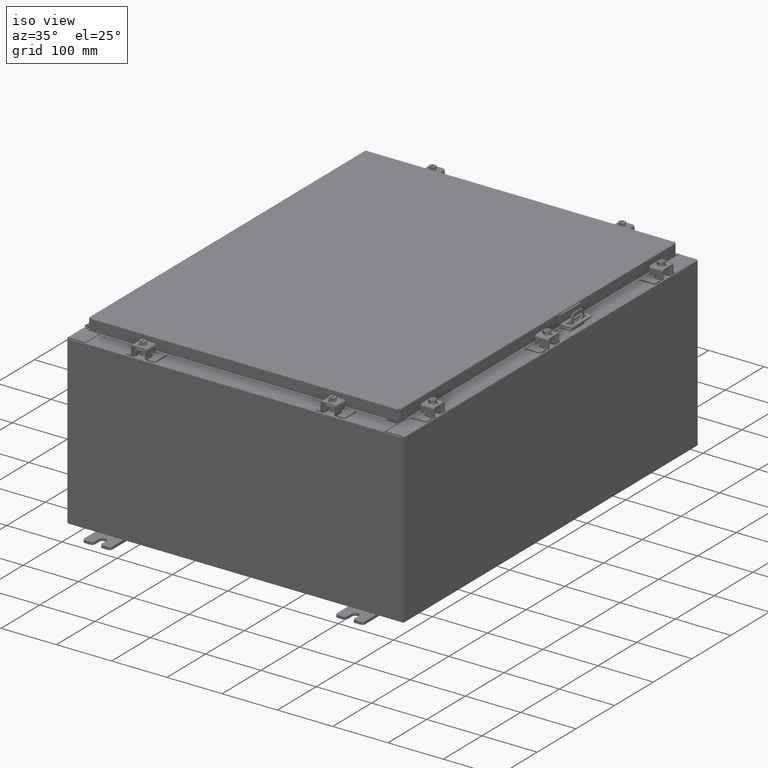
[diagram: clean part render]
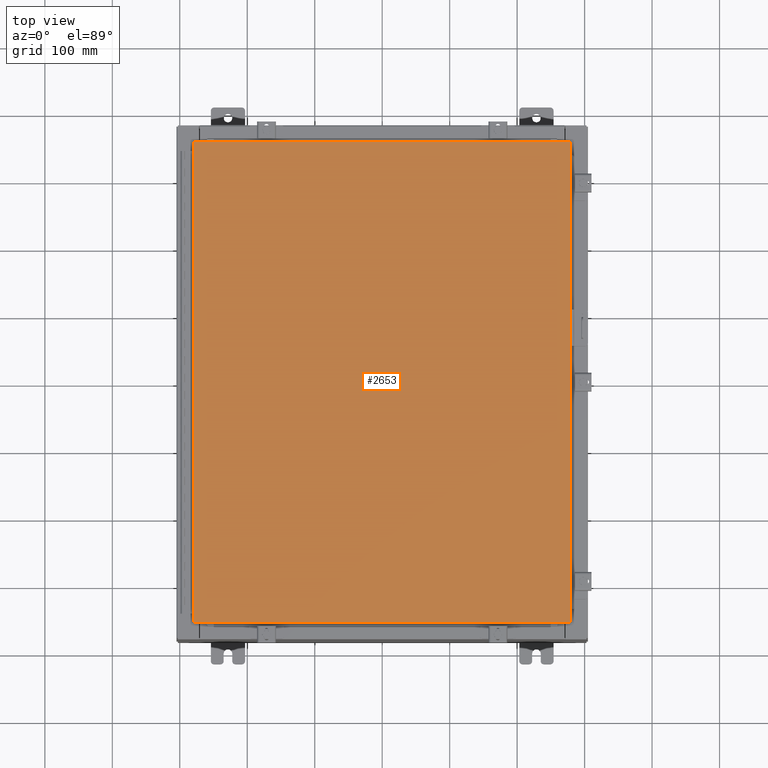
[diagram: tour spotlight — one face highlighted and labeled with its STEP entity id]
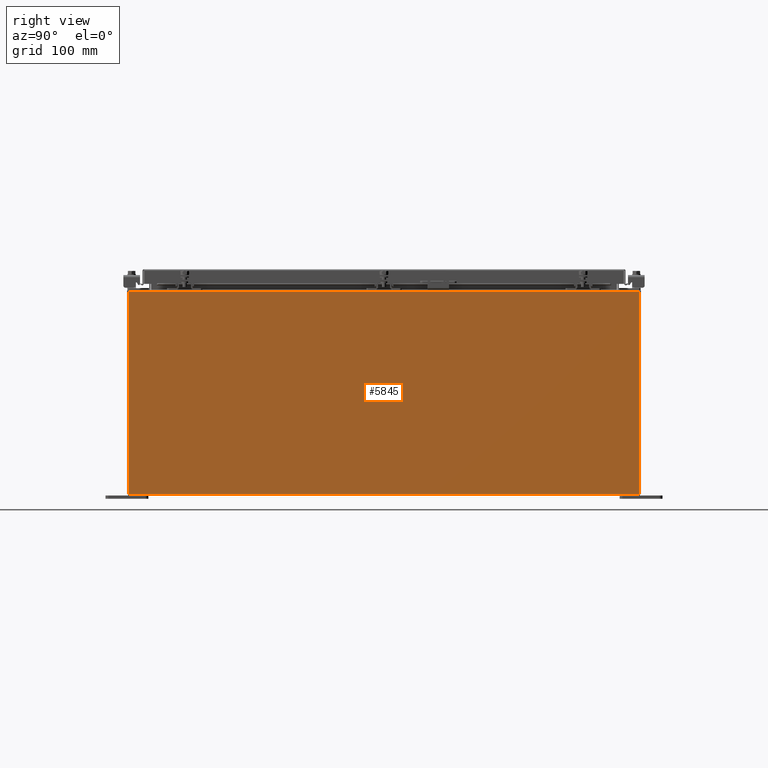
[diagram: tour spotlight — one face highlighted and labeled with its STEP entity id]
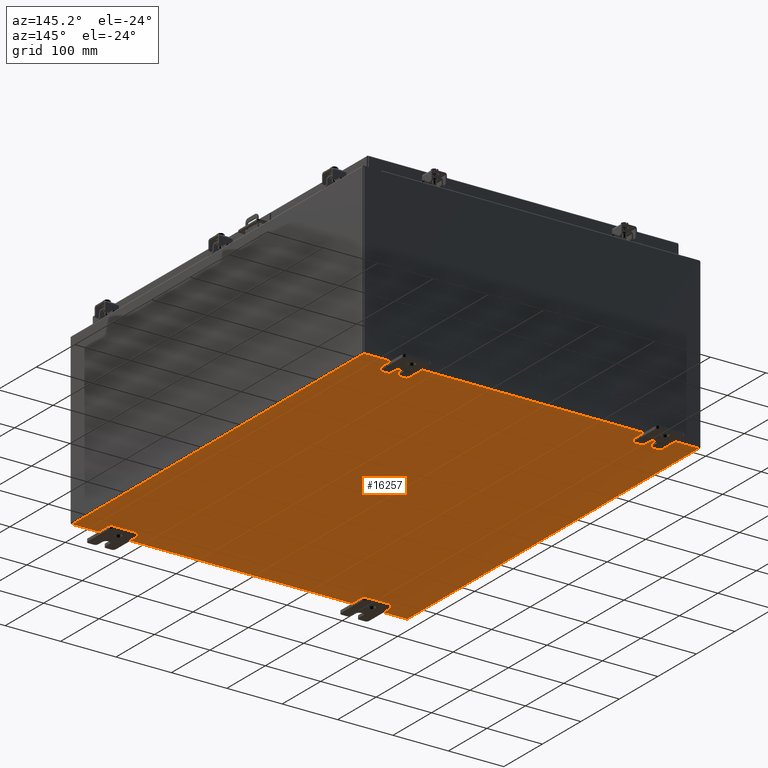
[diagram: tour spotlight — one face highlighted and labeled with its STEP entity id]
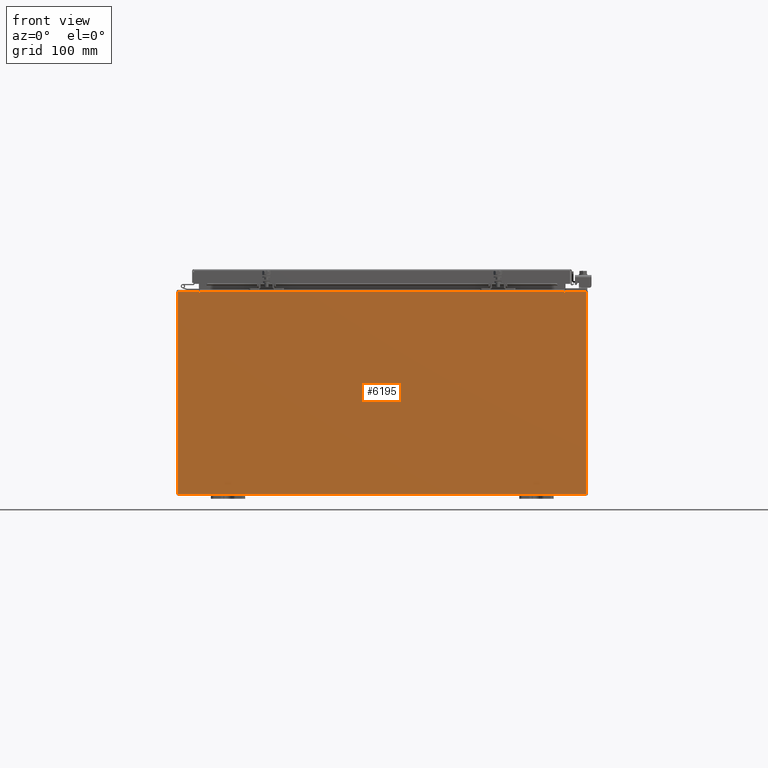
[diagram: tour spotlight — one face highlighted and labeled with its STEP entity id]
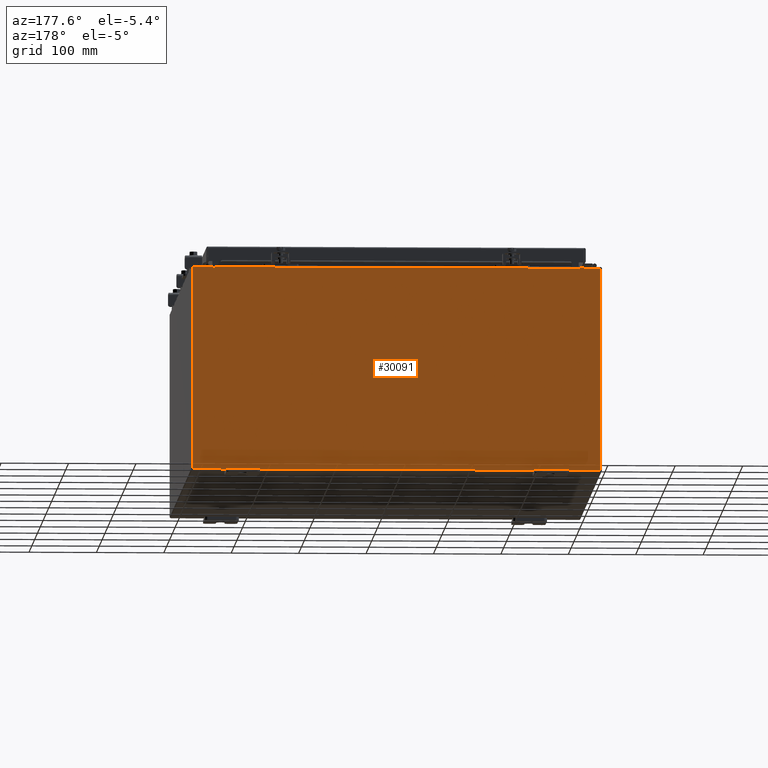
[diagram: tour spotlight — one face highlighted and labeled with its STEP entity id]
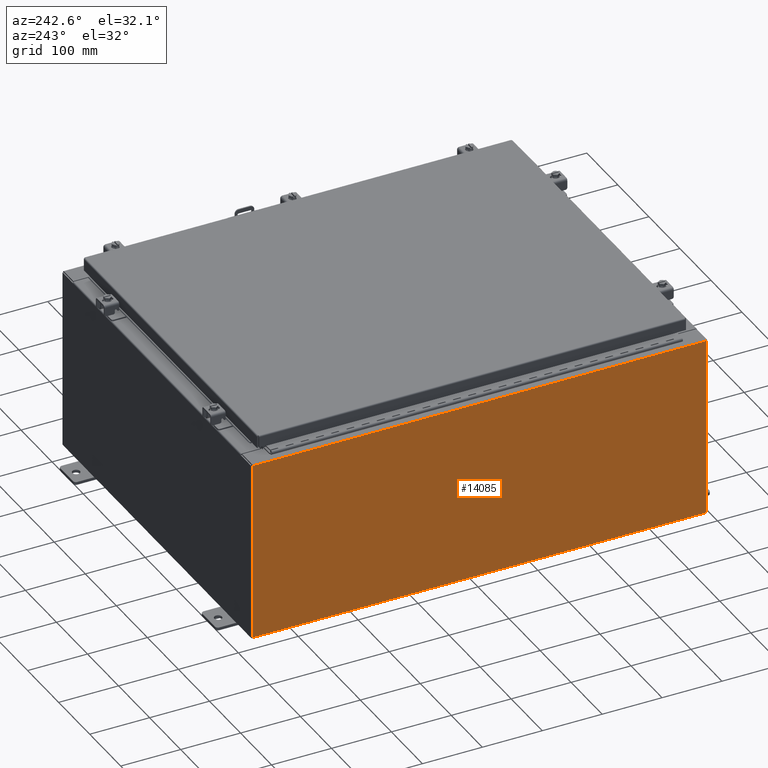
[diagram: tour spotlight — one face highlighted and labeled with its STEP entity id]
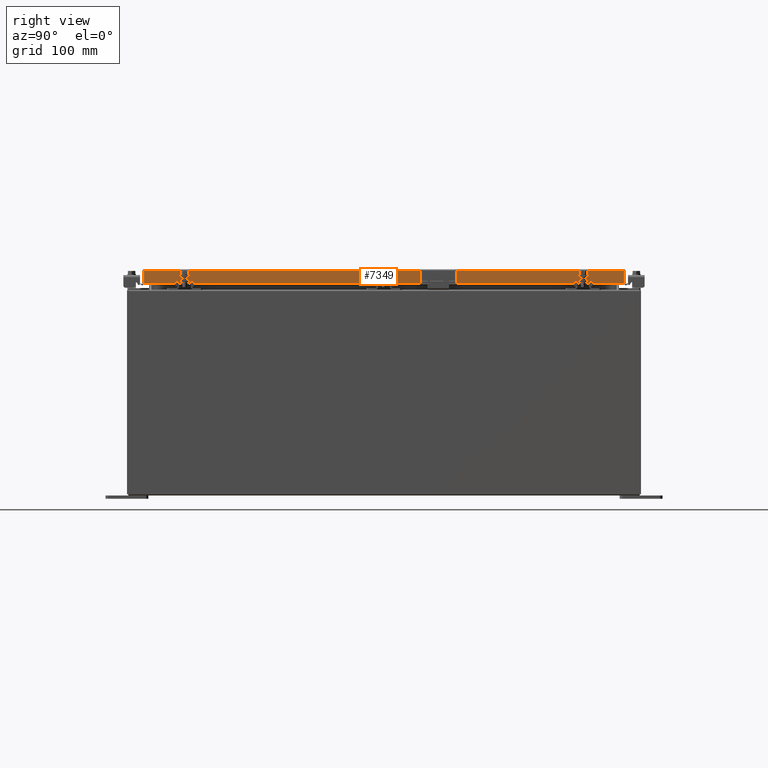
[diagram: tour spotlight — one face highlighted and labeled with its STEP entity id]
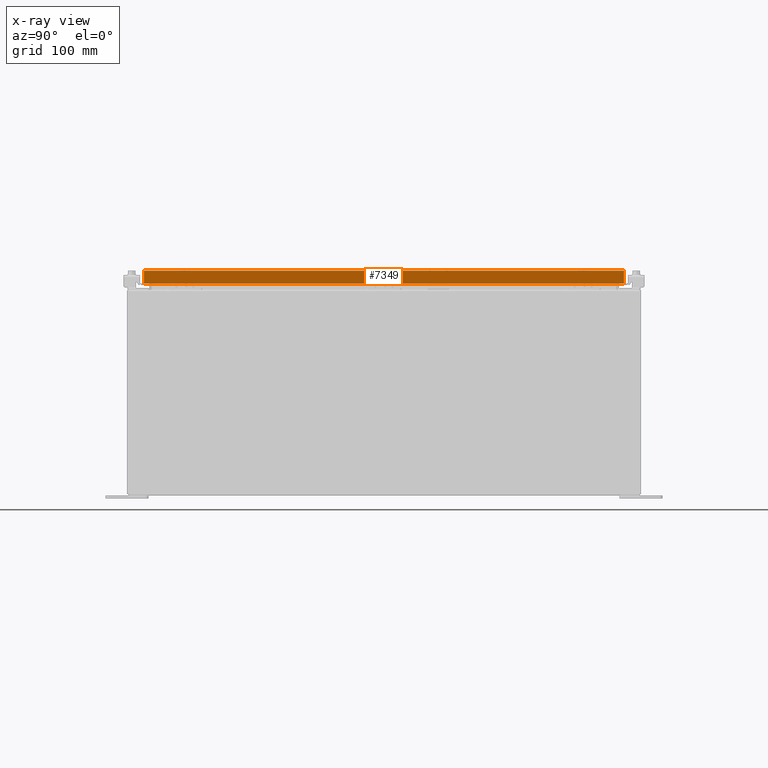
[diagram: x-ray of the same camera — body ghosted, this tour face saturated]
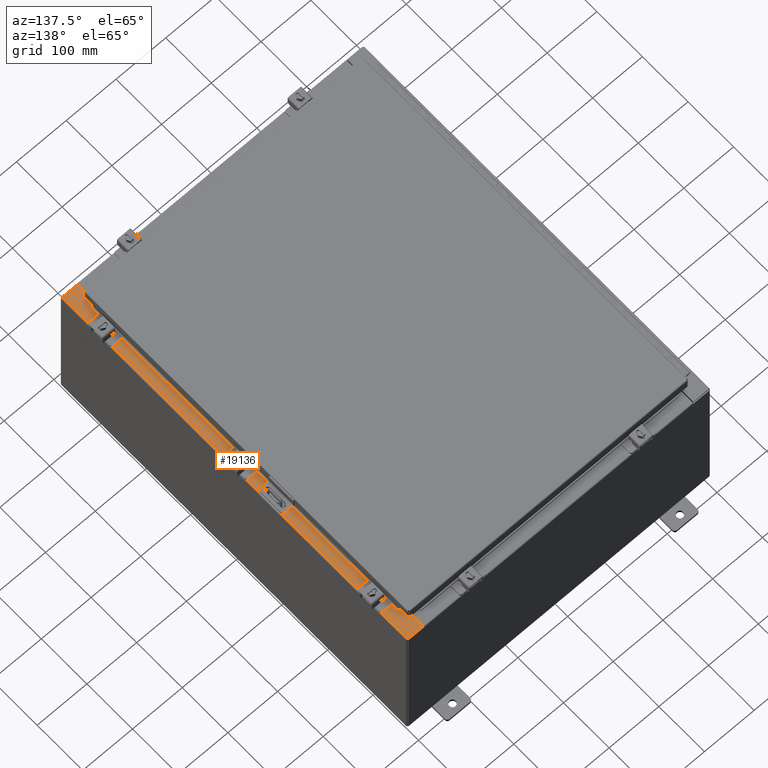
[diagram: tour spotlight — one face highlighted and labeled with its STEP entity id]
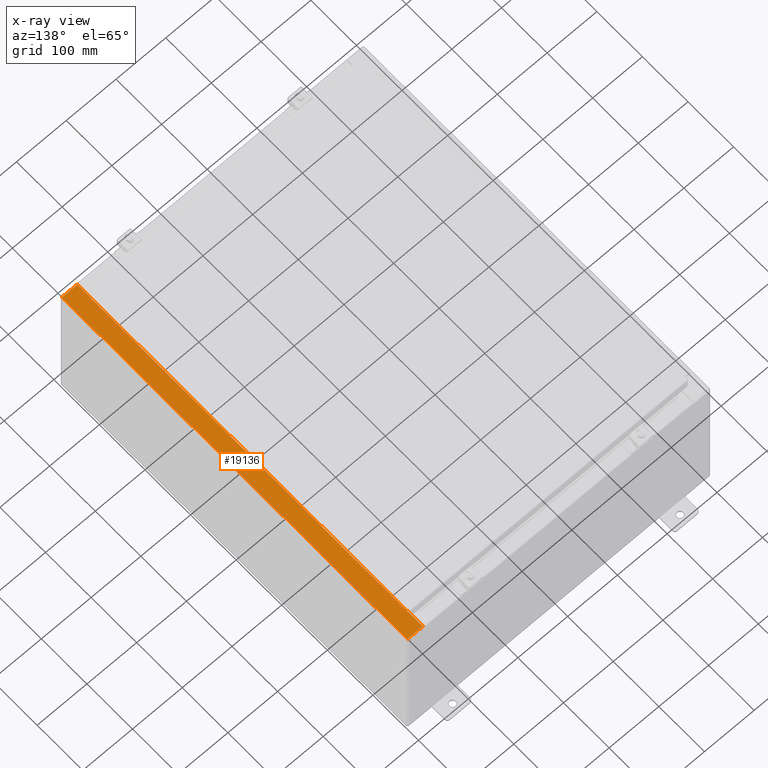
[diagram: x-ray of the same camera — body ghosted, this tour face saturated]
A machine part: a face-by-face anatomy tour. The part has 1990 B-rep faces; the first image is the clean iso view, then the 8 largest visible faces are spotlighted one at a time (largest first), each with its STEP entity span.

Face 1 — top view, entity #2653. In plain terms, the highlighted planar face has unit normal (0, 0, -1).
Definition (entity closure, byte-faithful):
#1337 = ORIENTED_EDGE ( 'NONE', *, *, #25868, .T. ) ;
#1664 = CARTESIAN_POINT ( 'NONE',  ( 10.99030000000000000, 14.00629999999999800, -2.048885995248197400E-016 ) ) ;
#2653 = ADVANCED_FACE ( 'NONE', ( #17172 ), #9737, .F. ) ;
#4001 = EDGE_LOOP ( 'NONE', ( #33539, #1337, #37169, #34947 ) ) ;
#4147 = CARTESIAN_POINT ( 'NONE',  ( -10.99029999999999600, -14.00629999999999800, -2.219626494852214000E-016 ) ) ;
#4249 = VERTEX_POINT ( 'NONE', #19066 ) ;
#4416 = VERTEX_POINT ( 'NONE', #17222 ) ;
#4637 = DIRECTION ( 'NONE',  ( 1.000000000000000000, -0.0000000000000000000, -0.0000000000000000000 ) ) ;
#4789 = LINE ( 'NONE', #15943, #11598 ) ;
#5184 = EDGE_CURVE ( 'NONE', #17253, #4416, #4789, .T. ) ;
#6845 = DIRECTION ( 'NONE',  ( 0.0000000000000000000, 1.000000000000000000, 0.0000000000000000000 ) ) ;
#6941 = EDGE_CURVE ( 'NONE', #4416, #4249, #29421, .T. ) ;
#7596 = DIRECTION ( 'NONE',  ( -1.000000000000000000, -0.0000000000000000000, -0.0000000000000000000 ) ) ;
#8770 = AXIS2_PLACEMENT_3D ( 'NONE', #25839, #20456, #15404 ) ;
#9737 = PLANE ( 'NONE',  #8770 ) ;
#11598 = VECTOR ( 'NONE', #15233, 39.37007874015748100 ) ;
#15233 = DIRECTION ( 'NONE',  ( 0.0000000000000000000, -1.000000000000000000, 0.0000000000000000000 ) ) ;
#15404 = DIRECTION ( 'NONE',  ( -1.000000000000000000, 0.0000000000000000000, -0.0000000000000000000 ) ) ;
#15943 = CARTESIAN_POINT ( 'NONE',  ( -10.99030000000000000, 14.00630000000000100, -2.048885995248197400E-016 ) ) ;
#17172 = FACE_OUTER_BOUND ( 'NONE', #4001, .T. ) ;
#17222 = CARTESIAN_POINT ( 'NONE',  ( -10.99029999999999800, -14.00629999999999800, -2.048885995248197400E-016 ) ) ;
#17253 = VERTEX_POINT ( 'NONE', #36830 ) ;
#19066 = CARTESIAN_POINT ( 'NONE',  ( 10.99030000000000000, -14.00629999999999800, -2.048885995248197400E-016 ) ) ;
#19332 = VECTOR ( 'NONE', #7596, 39.37007874015748100 ) ;
#20456 = DIRECTION ( 'NONE',  ( 0.0000000000000000000, 0.0000000000000000000, -1.000000000000000000 ) ) ;
#20539 = LINE ( 'NONE', #35547, #34908 ) ;
#21828 = VECTOR ( 'NONE', #4637, 39.37007874015748100 ) ;
#22872 = CARTESIAN_POINT ( 'NONE',  ( 10.99030000000000000, 14.00629999999999800, -2.048885995248197400E-016 ) ) ;
#24176 = EDGE_CURVE ( 'NONE', #35551, #17253, #35477, .T. ) ;
#25839 = CARTESIAN_POINT ( 'NONE',  ( 0.0000000000000000000, 0.0000000000000000000, 0.0000000000000000000 ) ) ;
#25868 = EDGE_CURVE ( 'NONE', #4249, #35551, #20539, .T. ) ;
#29421 = LINE ( 'NONE', #4147, #21828 ) ;
#33539 = ORIENTED_EDGE ( 'NONE', *, *, #6941, .T. ) ;
#34908 = VECTOR ( 'NONE', #6845, 39.37007874015748100 ) ;
#34947 = ORIENTED_EDGE ( 'NONE', *, *, #5184, .T. ) ;
#35477 = LINE ( 'NONE', #1664, #19332 ) ;
#35547 = CARTESIAN_POINT ( 'NONE',  ( 10.99030000000000000, -14.00629999999999800, -2.048885995248197400E-016 ) ) ;
#35551 = VERTEX_POINT ( 'NONE', #22872 ) ;
#36830 = CARTESIAN_POINT ( 'NONE',  ( -10.99030000000000000, 14.00630000000000100, -2.048885995248197400E-016 ) ) ;
#37169 = ORIENTED_EDGE ( 'NONE', *, *, #24176, .T. ) ;

Face 2 — right view, entity #5845. In plain terms, the highlighted planar face has unit normal (-1, 0, 0).
Definition (entity closure, byte-faithful):
#541 = VERTEX_POINT ( 'NONE', #14301 ) ;
#685 = LINE ( 'NONE', #2659, #22933 ) ;
#1216 = ORIENTED_EDGE ( 'NONE', *, *, #20702, .F. ) ;
#1341 = DIRECTION ( 'NONE',  ( 3.482016343714355500E-015, -1.832640180902292400E-016, 1.000000000000000000 ) ) ;
#1687 = CARTESIAN_POINT ( 'NONE',  ( 11.99999999999999600, 14.92530000000000000, -3.930973933138173100E-014 ) ) ;
#2470 = ORIENTED_EDGE ( 'NONE', *, *, #15425, .T. ) ;
#2659 = CARTESIAN_POINT ( 'NONE',  ( 11.99999999999999600, -14.92529999999999800, 0.01299999999999984700 ) ) ;
#4279 = CARTESIAN_POINT ( 'NONE',  ( 11.99999999999999600, -14.92530000000000000, 0.01299999999999997900 ) ) ;
#5845 = ADVANCED_FACE ( 'NONE', ( #6116 ), #17160, .F. ) ;
#6116 = FACE_OUTER_BOUND ( 'NONE', #10740, .T. ) ;
#9898 = LINE ( 'NONE', #29101, #31940 ) ;
#10740 = EDGE_LOOP ( 'NONE', ( #36123, #36940, #1216, #2470 ) ) ;
#11451 = DIRECTION ( 'NONE',  ( 2.549319440810500300E-031, -1.000000000000000000, 7.321388497823869400E-017 ) ) ;
#12526 = CARTESIAN_POINT ( 'NONE',  ( 12.00000000000003700, 14.92529999999999800, 11.83760000000000000 ) ) ;
#13711 = LINE ( 'NONE', #1687, #35700 ) ;
#14301 = CARTESIAN_POINT ( 'NONE',  ( 12.00000000000003700, -14.92529999999999800, 11.83760000000000000 ) ) ;
#15425 = EDGE_CURVE ( 'NONE', #28541, #26445, #13711, .T. ) ;
#15656 = EDGE_CURVE ( 'NONE', #26445, #541, #27568, .T. ) ;
#16737 = DIRECTION ( 'NONE',  ( 3.482016343714355100E-015, 0.0000000000000000000, 1.000000000000000000 ) ) ;
#16806 = DIRECTION ( 'NONE',  ( -1.000000000000000000, 0.0000000000000000000, 3.482016343714355100E-015 ) ) ;
#16993 = CARTESIAN_POINT ( 'NONE',  ( 11.99999999999999600, 0.0000000000000000000, -4.204500978058383300E-014 ) ) ;
#17160 = PLANE ( 'NONE',  #36829 ) ;
#20611 = DIRECTION ( 'NONE',  ( -3.482016343714355500E-015, -1.832640180902292400E-016, -1.000000000000000000 ) ) ;
#20702 = EDGE_CURVE ( 'NONE', #28541, #36336, #685, .T. ) ;
#22933 = VECTOR ( 'NONE', #11451, 39.37007874015748100 ) ;
#23305 = EDGE_CURVE ( 'NONE', #541, #36336, #9898, .T. ) ;
#26445 = VERTEX_POINT ( 'NONE', #12526 ) ;
#27568 = LINE ( 'NONE', #32126, #36118 ) ;
#28541 = VERTEX_POINT ( 'NONE', #28842 ) ;
#28842 = CARTESIAN_POINT ( 'NONE',  ( 11.99999999999999600, 14.92529999999999800, 0.01299999999999766100 ) ) ;
#29101 = CARTESIAN_POINT ( 'NONE',  ( 11.99999999999999600, -14.92530000000000000, -3.930973933138173100E-014 ) ) ;
#31940 = VECTOR ( 'NONE', #20611, 39.37007874015748100 ) ;
#32126 = CARTESIAN_POINT ( 'NONE',  ( 12.00000000000003700, 14.92529999999999800, 11.83760000000000000 ) ) ;
#32491 = DIRECTION ( 'NONE',  ( -0.0000000000000000000, -1.000000000000000000, -0.0000000000000000000 ) ) ;
#35700 = VECTOR ( 'NONE', #1341, 39.37007874015748100 ) ;
#36118 = VECTOR ( 'NONE', #32491, 39.37007874015748100 ) ;
#36123 = ORIENTED_EDGE ( 'NONE', *, *, #15656, .T. ) ;
#36336 = VERTEX_POINT ( 'NONE', #4279 ) ;
#36829 = AXIS2_PLACEMENT_3D ( 'NONE', #16993, #16806, #16737 ) ;
#36940 = ORIENTED_EDGE ( 'NONE', *, *, #23305, .T. ) ;

Face 3 — auxiliary view, entity #16257. In plain terms, the highlighted planar face has unit normal (0, 0, -1).
Definition (entity closure, byte-faithful):
#372 = CARTESIAN_POINT ( 'NONE',  ( -11.91230000000000500, 14.92530000000000000, -0.07470000000000000300 ) ) ;
#3740 = DIRECTION ( 'NONE',  ( -0.0000000000000000000, 1.000000000000000000, -0.0000000000000000000 ) ) ;
#4235 = EDGE_CURVE ( 'NONE', #12942, #16228, #5788, .T. ) ;
#5067 = DIRECTION ( 'NONE',  ( -0.0000000000000000000, -1.000000000000000000, 8.208677865577646300E-017 ) ) ;
#5731 = ORIENTED_EDGE ( 'NONE', *, *, #27366, .T. ) ;
#5788 = LINE ( 'NONE', #22039, #28739 ) ;
#7002 = VERTEX_POINT ( 'NONE', #372 ) ;
#7980 = ORIENTED_EDGE ( 'NONE', *, *, #14703, .F. ) ;
#8539 = ORIENTED_EDGE ( 'NONE', *, *, #4235, .T. ) ;
#12336 = CARTESIAN_POINT ( 'NONE',  ( -12.00000000000000500, -14.92530000000000000, -0.07470000000000000300 ) ) ;
#12377 = LINE ( 'NONE', #15433, #19154 ) ;
#12407 = DIRECTION ( 'NONE',  ( -1.000000000000000000, 0.0000000000000000000, -0.0000000000000000000 ) ) ;
#12451 = DIRECTION ( 'NONE',  ( 0.0000000000000000000, 0.0000000000000000000, -1.000000000000000000 ) ) ;
#12830 = PLANE ( 'NONE',  #17731 ) ;
#12942 = VERTEX_POINT ( 'NONE', #22271 ) ;
#13244 = CARTESIAN_POINT ( 'NONE',  ( 0.0000000000000000000, 0.0000000000000000000, -0.07470000000000000300 ) ) ;
#13407 = CARTESIAN_POINT ( 'NONE',  ( 11.91229999999998800, -14.92530000000000000, -0.07470000000000000300 ) ) ;
#13827 = EDGE_LOOP ( 'NONE', ( #32765, #5731, #7980, #8539 ) ) ;
#14380 = DIRECTION ( 'NONE',  ( -1.000000000000000000, -0.0000000000000000000, -0.0000000000000000000 ) ) ;
#14497 = CARTESIAN_POINT ( 'NONE',  ( -12.00000000000000500, 14.92530000000000000, -0.07470000000000000300 ) ) ;
#14703 = EDGE_CURVE ( 'NONE', #12942, #7002, #24002, .T. ) ;
#15433 = CARTESIAN_POINT ( 'NONE',  ( -11.91230000000000500, -14.92530000000000000, -0.07469999999999994700 ) ) ;
#16228 = VERTEX_POINT ( 'NONE', #13407 ) ;
#16257 = ADVANCED_FACE ( 'NONE', ( #30848 ), #12830, .T. ) ;
#17731 = AXIS2_PLACEMENT_3D ( 'NONE', #13244, #12451, #12407 ) ;
#19154 = VECTOR ( 'NONE', #3740, 39.37007874015748100 ) ;
#22039 = CARTESIAN_POINT ( 'NONE',  ( 11.91229999999999700, 14.92530000000000000, -0.07470000000000226500 ) ) ;
#22271 = CARTESIAN_POINT ( 'NONE',  ( 11.91229999999999700, 14.92530000000000000, -0.07470000000000226500 ) ) ;
#23615 = VECTOR ( 'NONE', #14380, 39.37007874015748100 ) ;
#24002 = LINE ( 'NONE', #14497, #23615 ) ;
#24914 = CARTESIAN_POINT ( 'NONE',  ( -11.91230000000000500, -14.92530000000000000, -0.07469999999999994700 ) ) ;
#26501 = LINE ( 'NONE', #12336, #27381 ) ;
#26656 = VERTEX_POINT ( 'NONE', #24914 ) ;
#27366 = EDGE_CURVE ( 'NONE', #26656, #7002, #12377, .T. ) ;
#27381 = VECTOR ( 'NONE', #32430, 39.37007874015748100 ) ;
#28739 = VECTOR ( 'NONE', #5067, 39.37007874015748100 ) ;
#30848 = FACE_OUTER_BOUND ( 'NONE', #13827, .T. ) ;
#32430 = DIRECTION ( 'NONE',  ( 1.000000000000000000, 0.0000000000000000000, 0.0000000000000000000 ) ) ;
#32765 = ORIENTED_EDGE ( 'NONE', *, *, #35105, .F. ) ;
#35105 = EDGE_CURVE ( 'NONE', #26656, #16228, #26501, .T. ) ;

Face 4 — front view, entity #6195. In plain terms, the highlighted planar face has unit normal (-0, 1, -0).
Definition (entity closure, byte-faithful):
#530 = ORIENTED_EDGE ( 'NONE', *, *, #26199, .F. ) ;
#1156 = CARTESIAN_POINT ( 'NONE',  ( -11.92530000000000000, 0.0000000000000000000, -5.925299999999999100 ) ) ;
#1581 = DIRECTION ( 'NONE',  ( -0.0000000000000000000, -0.0000000000000000000, 1.000000000000000000 ) ) ;
#2426 = CARTESIAN_POINT ( 'NONE',  ( 10.67455000000000200, 0.0000000000000000000, 5.874950000000001000 ) ) ;
#2609 = VERTEX_POINT ( 'NONE', #33939 ) ;
#2710 = CARTESIAN_POINT ( 'NONE',  ( -11.92530000000000000, 0.0000000000000000000, 5.925300000000000000 ) ) ;
#3094 = DIRECTION ( 'NONE',  ( -1.000000000000000000, -0.0000000000000000000, -0.0000000000000000000 ) ) ;
#3151 = DIRECTION ( 'NONE',  ( 0.0000000000000000000, 0.0000000000000000000, 1.000000000000000000 ) ) ;
#4079 = CARTESIAN_POINT ( 'NONE',  ( 10.65587500000000200, 0.0000000000000000000, 5.874950000000001000 ) ) ;
#4215 = CARTESIAN_POINT ( 'NONE',  ( 10.67455000000000200, 0.0000000000000000000, 0.0000000000000000000 ) ) ;
#4487 = DIRECTION ( 'NONE',  ( 0.0000000000000000000, 0.0000000000000000000, -1.000000000000000000 ) ) ;
#5182 = CARTESIAN_POINT ( 'NONE',  ( 10.63720000000000400, 0.0000000000000000000, 0.0000000000000000000 ) ) ;
#5452 = CARTESIAN_POINT ( 'NONE',  ( -11.92530000000000000, 0.0000000000000000000, 5.925300000000000000 ) ) ;
#5492 = VERTEX_POINT ( 'NONE', #30115 ) ;
#5675 = LINE ( 'NONE', #17373, #13379 ) ;
#5681 = ORIENTED_EDGE ( 'NONE', *, *, #18052, .F. ) ;
#5875 = VERTEX_POINT ( 'NONE', #15711 ) ;
#6195 = ADVANCED_FACE ( 'NONE', ( #9721 ), #30957, .F. ) ;
#6290 = LINE ( 'NONE', #5182, #35987 ) ;
#6834 = LINE ( 'NONE', #11792, #36555 ) ;
#7010 = DIRECTION ( 'NONE',  ( 0.0000000000000000000, 0.0000000000000000000, -1.000000000000000000 ) ) ;
#8277 = DIRECTION ( 'NONE',  ( 0.0000000000000000000, -1.000000000000000000, 0.0000000000000000000 ) ) ;
#8422 = VERTEX_POINT ( 'NONE', #19053 ) ;
#8739 = CARTESIAN_POINT ( 'NONE',  ( -10.63720000000000400, -0.0000000000000000000, 5.874950000000001000 ) ) ;
#9659 = VERTEX_POINT ( 'NONE', #28571 ) ;
#9721 = FACE_OUTER_BOUND ( 'NONE', #11723, .T. ) ;
#10057 = VERTEX_POINT ( 'NONE', #21024 ) ;
#10190 = VECTOR ( 'NONE', #19657, 39.37007874015748100 ) ;
#10567 = VECTOR ( 'NONE', #3094, 39.37007874015748100 ) ;
#10990 = DIRECTION ( 'NONE',  ( 1.000000000000000000, 0.0000000000000000000, 4.581600452255731000E-017 ) ) ;
#11122 = CARTESIAN_POINT ( 'NONE',  ( -11.92530000000000000, 0.0000000000000000000, 5.925300000000000000 ) ) ;
#11723 = EDGE_LOOP ( 'NONE', ( #28597, #530, #34936, #21487, #30857, #26847, #5681, #29534, #31346, #34969, #24175, #31835 ) ) ;
#11792 = CARTESIAN_POINT ( 'NONE',  ( -10.67455000000000200, -0.0000000000000000000, 0.0000000000000000000 ) ) ;
#12987 = EDGE_CURVE ( 'NONE', #15379, #35145, #25472, .T. ) ;
#13379 = VECTOR ( 'NONE', #17500, 39.37007874015748100 ) ;
#13450 = EDGE_CURVE ( 'NONE', #5875, #28442, #26372, .T. ) ;
#13947 = DIRECTION ( 'NONE',  ( 0.0000000000000000000, 0.0000000000000000000, 1.000000000000000000 ) ) ;
#14730 = EDGE_CURVE ( 'NONE', #28442, #5492, #21846, .T. ) ;
#14817 = CARTESIAN_POINT ( 'NONE',  ( 10.63720000000000400, 0.0000000000000000000, 5.912300000000001000 ) ) ;
#14923 = EDGE_CURVE ( 'NONE', #9659, #5875, #15558, .T. ) ;
#15145 = VECTOR ( 'NONE', #10990, 39.37007874015748100 ) ;
#15241 = VERTEX_POINT ( 'NONE', #14817 ) ;
#15379 = VERTEX_POINT ( 'NONE', #34040 ) ;
#15558 = LINE ( 'NONE', #1156, #10567 ) ;
#15651 = LINE ( 'NONE', #34306, #29066 ) ;
#15711 = CARTESIAN_POINT ( 'NONE',  ( -11.92530000000000000, 0.0000000000000000000, -5.925299999999999100 ) ) ;
#16101 = EDGE_CURVE ( 'NONE', #35145, #9659, #5675, .T. ) ;
#16976 = DIRECTION ( 'NONE',  ( -0.0000000000000000000, 1.000000000000000000, -0.0000000000000000000 ) ) ;
#17373 = CARTESIAN_POINT ( 'NONE',  ( 11.92530000000000000, 0.0000000000000000000, 5.925300000000001800 ) ) ;
#17500 = DIRECTION ( 'NONE',  ( 0.0000000000000000000, 0.0000000000000000000, -1.000000000000000000 ) ) ;
#17571 = AXIS2_PLACEMENT_3D ( 'NONE', #4079, #24253, #7010 ) ;
#18052 = EDGE_CURVE ( 'NONE', #15379, #24967, #33428, .T. ) ;
#19009 = EDGE_CURVE ( 'NONE', #24967, #10057, #25717, .T. ) ;
#19053 = CARTESIAN_POINT ( 'NONE',  ( -10.63720000000000400, -1.707404996040164500E-016, 5.912300000000001000 ) ) ;
#19183 = CIRCLE ( 'NONE', #32858, 0.01867499999999949400 ) ;
#19657 = DIRECTION ( 'NONE',  ( 1.000000000000000000, 0.0000000000000000000, 4.581600452255731000E-017 ) ) ;
#19948 = EDGE_CURVE ( 'NONE', #10057, #15241, #6290, .T. ) ;
#20017 = DIRECTION ( 'NONE',  ( 1.000000000000000000, 0.0000000000000000000, 0.0000000000000000000 ) ) ;
#20454 = DIRECTION ( 'NONE',  ( 0.0000000000000000000, 0.0000000000000000000, -1.000000000000000000 ) ) ;
#20496 = CARTESIAN_POINT ( 'NONE',  ( -11.92530000000000000, 0.0000000000000000000, 5.925300000000000000 ) ) ;
#21024 = CARTESIAN_POINT ( 'NONE',  ( 10.63720000000000400, 0.0000000000000000000, 5.874950000000001000 ) ) ;
#21487 = ORIENTED_EDGE ( 'NONE', *, *, #22586, .T. ) ;
#21846 = LINE ( 'NONE', #11122, #15145 ) ;
#21930 = AXIS2_PLACEMENT_3D ( 'NONE', #33245, #8277, #29093 ) ;
#22586 = EDGE_CURVE ( 'NONE', #8422, #15241, #15651, .T. ) ;
#23222 = VERTEX_POINT ( 'NONE', #8739 ) ;
#24003 = CARTESIAN_POINT ( 'NONE',  ( 11.92530000000000000, 0.0000000000000000000, 5.925300000000001800 ) ) ;
#24175 = ORIENTED_EDGE ( 'NONE', *, *, #13450, .T. ) ;
#24253 = DIRECTION ( 'NONE',  ( -0.0000000000000000000, 1.000000000000000000, -0.0000000000000000000 ) ) ;
#24465 = EDGE_CURVE ( 'NONE', #8422, #23222, #32295, .T. ) ;
#24870 = VECTOR ( 'NONE', #4487, 39.37007874015748100 ) ;
#24967 = VERTEX_POINT ( 'NONE', #2426 ) ;
#25472 = LINE ( 'NONE', #20496, #10190 ) ;
#25717 = CIRCLE ( 'NONE', #17571, 0.01867499999999949400 ) ;
#26199 = EDGE_CURVE ( 'NONE', #23222, #2609, #19183, .T. ) ;
#26372 = LINE ( 'NONE', #2710, #33097 ) ;
#26847 = ORIENTED_EDGE ( 'NONE', *, *, #19009, .F. ) ;
#28442 = VERTEX_POINT ( 'NONE', #5452 ) ;
#28571 = CARTESIAN_POINT ( 'NONE',  ( 11.92530000000000000, 0.0000000000000000000, -5.925299999999999100 ) ) ;
#28591 = EDGE_CURVE ( 'NONE', #2609, #5492, #6834, .T. ) ;
#28597 = ORIENTED_EDGE ( 'NONE', *, *, #28591, .F. ) ;
#29066 = VECTOR ( 'NONE', #20017, 39.37007874015748100 ) ;
#29093 = DIRECTION ( 'NONE',  ( 0.0000000000000000000, -0.0000000000000000000, -1.000000000000000000 ) ) ;
#29534 = ORIENTED_EDGE ( 'NONE', *, *, #12987, .T. ) ;
#30115 = CARTESIAN_POINT ( 'NONE',  ( -10.67455000000000200, 0.0000000000000000000, 5.925300000000000000 ) ) ;
#30857 = ORIENTED_EDGE ( 'NONE', *, *, #19948, .F. ) ;
#30957 = PLANE ( 'NONE',  #21930 ) ;
#31346 = ORIENTED_EDGE ( 'NONE', *, *, #16101, .T. ) ;
#31835 = ORIENTED_EDGE ( 'NONE', *, *, #14730, .T. ) ;
#32295 = LINE ( 'NONE', #34756, #34105 ) ;
#32858 = AXIS2_PLACEMENT_3D ( 'NONE', #34147, #16976, #37029 ) ;
#33097 = VECTOR ( 'NONE', #1581, 39.37007874015748100 ) ;
#33245 = CARTESIAN_POINT ( 'NONE',  ( 0.0000000000000000000, 0.0000000000000000000, 0.0000000000000000000 ) ) ;
#33428 = LINE ( 'NONE', #4215, #24870 ) ;
#33939 = CARTESIAN_POINT ( 'NONE',  ( -10.67455000000000200, 0.0000000000000000000, 5.874950000000001000 ) ) ;
#34040 = CARTESIAN_POINT ( 'NONE',  ( 10.67455000000000200, 0.0000000000000000000, 5.925300000000001800 ) ) ;
#34105 = VECTOR ( 'NONE', #20454, 39.37007874015748100 ) ;
#34147 = CARTESIAN_POINT ( 'NONE',  ( -10.65587500000000200, 0.0000000000000000000, 5.874950000000001000 ) ) ;
#34306 = CARTESIAN_POINT ( 'NONE',  ( -10.63720000000000400, -1.707404996040164500E-016, 5.912300000000001000 ) ) ;
#34756 = CARTESIAN_POINT ( 'NONE',  ( -10.63720000000000400, -0.0000000000000000000, 0.0000000000000000000 ) ) ;
#34936 = ORIENTED_EDGE ( 'NONE', *, *, #24465, .F. ) ;
#34969 = ORIENTED_EDGE ( 'NONE', *, *, #14923, .T. ) ;
#35145 = VERTEX_POINT ( 'NONE', #24003 ) ;
#35987 = VECTOR ( 'NONE', #13947, 39.37007874015748100 ) ;
#36555 = VECTOR ( 'NONE', #3151, 39.37007874015748100 ) ;
#37029 = DIRECTION ( 'NONE',  ( 0.0000000000000000000, 0.0000000000000000000, -1.000000000000000000 ) ) ;

Face 5 — auxiliary view, entity #30091. In plain terms, the highlighted planar face has unit normal (0, -1, 0).
Definition (entity closure, byte-faithful):
#1559 = ORIENTED_EDGE ( 'NONE', *, *, #11409, .T. ) ;
#1791 = EDGE_CURVE ( 'NONE', #32254, #36724, #14532, .T. ) ;
#2180 = CARTESIAN_POINT ( 'NONE',  ( 11.92530000000000000, 0.0000000000000000000, 5.925300000000001800 ) ) ;
#2218 = DIRECTION ( 'NONE',  ( 0.0000000000000000000, 0.0000000000000000000, -1.000000000000000000 ) ) ;
#2360 = EDGE_CURVE ( 'NONE', #6947, #36160, #27037, .T. ) ;
#2504 = DIRECTION ( 'NONE',  ( 1.000000000000000000, 0.0000000000000000000, 0.0000000000000000000 ) ) ;
#2771 = CARTESIAN_POINT ( 'NONE',  ( -10.63720000000000400, -0.0000000000000000000, 0.0000000000000000000 ) ) ;
#2842 = CARTESIAN_POINT ( 'NONE',  ( -10.63720000000000400, -1.707404996040164500E-016, 5.912300000000001000 ) ) ;
#3023 = LINE ( 'NONE', #33874, #25138 ) ;
#3027 = ORIENTED_EDGE ( 'NONE', *, *, #6092, .T. ) ;
#3200 = EDGE_LOOP ( 'NONE', ( #18445, #5748, #37255, #1559, #3468, #11208, #6219, #8935, #3027, #11671, #26949, #13502 ) ) ;
#3468 = ORIENTED_EDGE ( 'NONE', *, *, #21069, .F. ) ;
#3994 = CARTESIAN_POINT ( 'NONE',  ( 0.0000000000000000000, 0.0000000000000000000, 0.0000000000000000000 ) ) ;
#4274 = CARTESIAN_POINT ( 'NONE',  ( -10.63720000000000400, -0.0000000000000000000, 5.874950000000001000 ) ) ;
#4720 = VECTOR ( 'NONE', #23001, 39.37007874015748100 ) ;
#5339 = CARTESIAN_POINT ( 'NONE',  ( -11.92530000000000000, 0.0000000000000000000, -5.925299999999999100 ) ) ;
#5628 = AXIS2_PLACEMENT_3D ( 'NONE', #5695, #6566, #12771 ) ;
#5695 = CARTESIAN_POINT ( 'NONE',  ( -10.65587500000000200, 0.0000000000000000000, 5.874950000000001000 ) ) ;
#5748 = ORIENTED_EDGE ( 'NONE', *, *, #2360, .F. ) ;
#5904 = VECTOR ( 'NONE', #8628, 39.37007874015748100 ) ;
#5985 = VERTEX_POINT ( 'NONE', #9288 ) ;
#6092 = EDGE_CURVE ( 'NONE', #20694, #5985, #35348, .T. ) ;
#6219 = ORIENTED_EDGE ( 'NONE', *, *, #16525, .F. ) ;
#6461 = CARTESIAN_POINT ( 'NONE',  ( -10.67455000000000200, 0.0000000000000000000, 5.874950000000001000 ) ) ;
#6566 = DIRECTION ( 'NONE',  ( -0.0000000000000000000, 1.000000000000000000, -0.0000000000000000000 ) ) ;
#6947 = VERTEX_POINT ( 'NONE', #4274 ) ;
#7076 = CARTESIAN_POINT ( 'NONE',  ( -10.63720000000000400, -1.707404996040164500E-016, 5.912300000000001000 ) ) ;
#7104 = DIRECTION ( 'NONE',  ( 0.0000000000000000000, 0.0000000000000000000, -1.000000000000000000 ) ) ;
#7359 = CARTESIAN_POINT ( 'NONE',  ( 10.67455000000000200, 0.0000000000000000000, 0.0000000000000000000 ) ) ;
#7491 = CIRCLE ( 'NONE', #17333, 0.01867499999999949400 ) ;
#7974 = AXIS2_PLACEMENT_3D ( 'NONE', #3994, #9842, #29925 ) ;
#8135 = CARTESIAN_POINT ( 'NONE',  ( -11.92530000000000000, 0.0000000000000000000, 5.925300000000000000 ) ) ;
#8240 = CARTESIAN_POINT ( 'NONE',  ( 10.67455000000000200, 0.0000000000000000000, 5.925300000000001800 ) ) ;
#8628 = DIRECTION ( 'NONE',  ( 1.000000000000000000, 0.0000000000000000000, 4.581600452255731000E-017 ) ) ;
#8935 = ORIENTED_EDGE ( 'NONE', *, *, #34180, .T. ) ;
#8960 = CARTESIAN_POINT ( 'NONE',  ( 10.67455000000000200, 0.0000000000000000000, 5.874950000000001000 ) ) ;
#9041 = CARTESIAN_POINT ( 'NONE',  ( -11.92530000000000000, 0.0000000000000000000, -5.925299999999999100 ) ) ;
#9288 = CARTESIAN_POINT ( 'NONE',  ( 11.92530000000000000, 0.0000000000000000000, -5.925299999999999100 ) ) ;
#9842 = DIRECTION ( 'NONE',  ( 0.0000000000000000000, -1.000000000000000000, 0.0000000000000000000 ) ) ;
#11099 = CARTESIAN_POINT ( 'NONE',  ( -10.67455000000000200, -0.0000000000000000000, 0.0000000000000000000 ) ) ;
#11208 = ORIENTED_EDGE ( 'NONE', *, *, #12640, .F. ) ;
#11409 = EDGE_CURVE ( 'NONE', #23482, #17462, #17589, .T. ) ;
#11671 = ORIENTED_EDGE ( 'NONE', *, *, #35031, .T. ) ;
#11972 = DIRECTION ( 'NONE',  ( -0.0000000000000000000, -0.0000000000000000000, 1.000000000000000000 ) ) ;
#12168 = CARTESIAN_POINT ( 'NONE',  ( -11.92530000000000000, 0.0000000000000000000, 5.925300000000000000 ) ) ;
#12447 = LINE ( 'NONE', #2771, #4720 ) ;
#12640 = EDGE_CURVE ( 'NONE', #27220, #13602, #7491, .T. ) ;
#12771 = DIRECTION ( 'NONE',  ( 0.0000000000000000000, 0.0000000000000000000, -1.000000000000000000 ) ) ;
#12878 = FACE_OUTER_BOUND ( 'NONE', #3200, .T. ) ;
#13142 = EDGE_CURVE ( 'NONE', #23093, #32254, #27711, .T. ) ;
#13502 = ORIENTED_EDGE ( 'NONE', *, *, #1791, .T. ) ;
#13602 = VERTEX_POINT ( 'NONE', #36545 ) ;
#13833 = DIRECTION ( 'NONE',  ( 1.000000000000000000, 0.0000000000000000000, 4.581600452255731000E-017 ) ) ;
#14273 = LINE ( 'NONE', #7359, #37154 ) ;
#14532 = LINE ( 'NONE', #8135, #5904 ) ;
#15553 = PLANE ( 'NONE',  #7974 ) ;
#16525 = EDGE_CURVE ( 'NONE', #35487, #27220, #14273, .T. ) ;
#17333 = AXIS2_PLACEMENT_3D ( 'NONE', #35649, #35457, #35269 ) ;
#17462 = VERTEX_POINT ( 'NONE', #28056 ) ;
#17589 = LINE ( 'NONE', #2842, #32802 ) ;
#18445 = ORIENTED_EDGE ( 'NONE', *, *, #18684, .F. ) ;
#18684 = EDGE_CURVE ( 'NONE', #36160, #36724, #27987, .T. ) ;
#18802 = CARTESIAN_POINT ( 'NONE',  ( -11.92530000000000000, 0.0000000000000000000, 5.925300000000000000 ) ) ;
#19121 = CARTESIAN_POINT ( 'NONE',  ( 10.63720000000000400, 0.0000000000000000000, 0.0000000000000000000 ) ) ;
#20105 = VECTOR ( 'NONE', #11972, 39.37007874015748100 ) ;
#20375 = VECTOR ( 'NONE', #22671, 39.37007874015748100 ) ;
#20694 = VERTEX_POINT ( 'NONE', #25649 ) ;
#21069 = EDGE_CURVE ( 'NONE', #13602, #17462, #35922, .T. ) ;
#21593 = VECTOR ( 'NONE', #29145, 39.37007874015748100 ) ;
#22671 = DIRECTION ( 'NONE',  ( 0.0000000000000000000, 0.0000000000000000000, 1.000000000000000000 ) ) ;
#23001 = DIRECTION ( 'NONE',  ( 0.0000000000000000000, 0.0000000000000000000, -1.000000000000000000 ) ) ;
#23093 = VERTEX_POINT ( 'NONE', #5339 ) ;
#23358 = LINE ( 'NONE', #9041, #21593 ) ;
#23482 = VERTEX_POINT ( 'NONE', #7076 ) ;
#25138 = VECTOR ( 'NONE', #13833, 39.37007874015748100 ) ;
#25605 = EDGE_CURVE ( 'NONE', #23482, #6947, #12447, .T. ) ;
#25649 = CARTESIAN_POINT ( 'NONE',  ( 11.92530000000000000, 0.0000000000000000000, 5.925300000000001800 ) ) ;
#26949 = ORIENTED_EDGE ( 'NONE', *, *, #13142, .T. ) ;
#27037 = CIRCLE ( 'NONE', #5628, 0.01867499999999949400 ) ;
#27220 = VERTEX_POINT ( 'NONE', #8960 ) ;
#27711 = LINE ( 'NONE', #12168, #20105 ) ;
#27987 = LINE ( 'NONE', #11099, #20375 ) ;
#28056 = CARTESIAN_POINT ( 'NONE',  ( 10.63720000000000400, 0.0000000000000000000, 5.912300000000001000 ) ) ;
#29145 = DIRECTION ( 'NONE',  ( -1.000000000000000000, -0.0000000000000000000, -0.0000000000000000000 ) ) ;
#29925 = DIRECTION ( 'NONE',  ( 0.0000000000000000000, -0.0000000000000000000, -1.000000000000000000 ) ) ;
#30091 = ADVANCED_FACE ( 'NONE', ( #12878 ), #15553, .F. ) ;
#30599 = DIRECTION ( 'NONE',  ( 0.0000000000000000000, 0.0000000000000000000, 1.000000000000000000 ) ) ;
#31723 = CARTESIAN_POINT ( 'NONE',  ( -10.67455000000000200, 0.0000000000000000000, 5.925300000000000000 ) ) ;
#32254 = VERTEX_POINT ( 'NONE', #18802 ) ;
#32802 = VECTOR ( 'NONE', #2504, 39.37007874015748100 ) ;
#33874 = CARTESIAN_POINT ( 'NONE',  ( -11.92530000000000000, 0.0000000000000000000, 5.925300000000000000 ) ) ;
#34180 = EDGE_CURVE ( 'NONE', #35487, #20694, #3023, .T. ) ;
#35031 = EDGE_CURVE ( 'NONE', #5985, #23093, #23358, .T. ) ;
#35038 = VECTOR ( 'NONE', #30599, 39.37007874015748100 ) ;
#35269 = DIRECTION ( 'NONE',  ( 0.0000000000000000000, 0.0000000000000000000, -1.000000000000000000 ) ) ;
#35348 = LINE ( 'NONE', #2180, #37162 ) ;
#35457 = DIRECTION ( 'NONE',  ( -0.0000000000000000000, 1.000000000000000000, -0.0000000000000000000 ) ) ;
#35487 = VERTEX_POINT ( 'NONE', #8240 ) ;
#35649 = CARTESIAN_POINT ( 'NONE',  ( 10.65587500000000200, 0.0000000000000000000, 5.874950000000001000 ) ) ;
#35922 = LINE ( 'NONE', #19121, #35038 ) ;
#36160 = VERTEX_POINT ( 'NONE', #6461 ) ;
#36545 = CARTESIAN_POINT ( 'NONE',  ( 10.63720000000000400, 0.0000000000000000000, 5.874950000000001000 ) ) ;
#36724 = VERTEX_POINT ( 'NONE', #31723 ) ;
#37154 = VECTOR ( 'NONE', #7104, 39.37007874015748100 ) ;
#37162 = VECTOR ( 'NONE', #2218, 39.37007874015748100 ) ;
#37255 = ORIENTED_EDGE ( 'NONE', *, *, #25605, .F. ) ;

Face 6 — auxiliary view, entity #14085. In plain terms, the highlighted planar face has unit normal (1, 0, 0).
Definition (entity closure, byte-faithful):
#1183 = VERTEX_POINT ( 'NONE', #24227 ) ;
#1830 = CARTESIAN_POINT ( 'NONE',  ( -12.00000000000000500, -14.92530000000000000, 0.01299999999999984700 ) ) ;
#1966 = VECTOR ( 'NONE', #29148, 39.37007874015748100 ) ;
#3082 = CARTESIAN_POINT ( 'NONE',  ( -12.00000000000000500, 14.92530000000000000, 0.01299999999999984700 ) ) ;
#3864 = CARTESIAN_POINT ( 'NONE',  ( -12.00000000000000500, 0.0000000000000000000, -4.204500978058386500E-014 ) ) ;
#5122 = LINE ( 'NONE', #34177, #19619 ) ;
#7125 = VECTOR ( 'NONE', #32187, 39.37007874015748100 ) ;
#7828 = VECTOR ( 'NONE', #27650, 39.37007874015748100 ) ;
#11508 = EDGE_CURVE ( 'NONE', #28265, #17205, #14884, .T. ) ;
#11549 = VERTEX_POINT ( 'NONE', #21652 ) ;
#12795 = EDGE_CURVE ( 'NONE', #11549, #17205, #17483, .T. ) ;
#14085 = ADVANCED_FACE ( 'NONE', ( #27637 ), #32994, .F. ) ;
#14220 = EDGE_CURVE ( 'NONE', #28265, #1183, #15552, .T. ) ;
#14884 = LINE ( 'NONE', #28051, #7125 ) ;
#15344 = CARTESIAN_POINT ( 'NONE',  ( -12.00000000000000500, -14.92530000000000000, -4.204500978058386500E-014 ) ) ;
#15552 = LINE ( 'NONE', #15344, #7828 ) ;
#17205 = VERTEX_POINT ( 'NONE', #3082 ) ;
#17332 = EDGE_CURVE ( 'NONE', #1183, #11549, #5122, .T. ) ;
#17483 = LINE ( 'NONE', #29275, #1966 ) ;
#19611 = EDGE_LOOP ( 'NONE', ( #21700, #22534, #26541, #33646 ) ) ;
#19619 = VECTOR ( 'NONE', #34144, 39.37007874015748100 ) ;
#21652 = CARTESIAN_POINT ( 'NONE',  ( -12.00000000000004600, 14.92530000000000000, 11.83760000000000000 ) ) ;
#21700 = ORIENTED_EDGE ( 'NONE', *, *, #17332, .T. ) ;
#22534 = ORIENTED_EDGE ( 'NONE', *, *, #12795, .T. ) ;
#24227 = CARTESIAN_POINT ( 'NONE',  ( -12.00000000000004600, -14.92530000000000000, 11.83760000000000000 ) ) ;
#26541 = ORIENTED_EDGE ( 'NONE', *, *, #11508, .F. ) ;
#27637 = FACE_OUTER_BOUND ( 'NONE', #19611, .T. ) ;
#27650 = DIRECTION ( 'NONE',  ( -3.482016343714355500E-015, 0.0000000000000000000, 1.000000000000000000 ) ) ;
#28051 = CARTESIAN_POINT ( 'NONE',  ( -12.00000000000000500, 14.92530000000000000, 0.01299999999999984700 ) ) ;
#28265 = VERTEX_POINT ( 'NONE', #1830 ) ;
#28279 = DIRECTION ( 'NONE',  ( 3.482016343714355100E-015, 0.0000000000000000000, -1.000000000000000000 ) ) ;
#29148 = DIRECTION ( 'NONE',  ( 3.482016343714355500E-015, 0.0000000000000000000, -1.000000000000000000 ) ) ;
#29275 = CARTESIAN_POINT ( 'NONE',  ( -12.00000000000000500, 14.92530000000000000, -4.204500978058386500E-014 ) ) ;
#32187 = DIRECTION ( 'NONE',  ( -0.0000000000000000000, 1.000000000000000000, -0.0000000000000000000 ) ) ;
#32456 = DIRECTION ( 'NONE',  ( 1.000000000000000000, 0.0000000000000000000, 3.482016343714355100E-015 ) ) ;
#32994 = PLANE ( 'NONE',  #34452 ) ;
#33646 = ORIENTED_EDGE ( 'NONE', *, *, #14220, .T. ) ;
#34144 = DIRECTION ( 'NONE',  ( 0.0000000000000000000, 1.000000000000000000, 0.0000000000000000000 ) ) ;
#34177 = CARTESIAN_POINT ( 'NONE',  ( -12.00000000000004600, -14.92530000000000000, 11.83760000000000000 ) ) ;
#34452 = AXIS2_PLACEMENT_3D ( 'NONE', #3864, #32456, #28279 ) ;

Face 7 — right view, entity #7349. An x-ray twin of the same camera follows (body ghosted, this face saturated) — the face is partly hidden behind the body. In plain terms, the highlighted planar face has unit normal (1, 0, 0).
Definition (entity closure, byte-faithful):
#160 = VECTOR ( 'NONE', #19812, 39.37007874015748100 ) ;
#1240 = EDGE_CURVE ( 'NONE', #20363, #28324, #33402, .T. ) ;
#2564 = LINE ( 'NONE', #35583, #17130 ) ;
#2717 = VECTOR ( 'NONE', #22492, 39.37007874015748100 ) ;
#3741 = LINE ( 'NONE', #7934, #27639 ) ;
#4123 = EDGE_CURVE ( 'NONE', #28324, #33900, #2564, .T. ) ;
#5174 = VECTOR ( 'NONE', #32655, 39.37007874015748100 ) ;
#5430 = CARTESIAN_POINT ( 'NONE',  ( 11.07799999999999900, 14.00515786437626900, 1.292858714020875700E-013 ) ) ;
#7089 = LINE ( 'NONE', #19486, #160 ) ;
#7349 = ADVANCED_FACE ( 'NONE', ( #7869 ), #28416, .T. ) ;
#7666 = EDGE_CURVE ( 'NONE', #9276, #14469, #3741, .T. ) ;
#7869 = FACE_OUTER_BOUND ( 'NONE', #14125, .T. ) ;
#7934 = CARTESIAN_POINT ( 'NONE',  ( 11.07799999999999900, 0.0000000000000000000, -0.08770000000000007000 ) ) ;
#8016 = DIRECTION ( 'NONE',  ( 0.0000000000000000000, -1.000000000000000000, 0.0000000000000000000 ) ) ;
#9276 = VERTEX_POINT ( 'NONE', #28613 ) ;
#9652 = CARTESIAN_POINT ( 'NONE',  ( 11.07800000000000300, -14.09399999999999900, -0.8499999999999996400 ) ) ;
#9890 = AXIS2_PLACEMENT_3D ( 'NONE', #28710, #27320, #27275 ) ;
#11959 = EDGE_CURVE ( 'NONE', #33900, #14469, #7089, .T. ) ;
#14125 = EDGE_LOOP ( 'NONE', ( #37177, #15892, #26608, #25630, #35705, #29835 ) ) ;
#14469 = VERTEX_POINT ( 'NONE', #28559 ) ;
#15746 = LINE ( 'NONE', #5430, #30976 ) ;
#15892 = ORIENTED_EDGE ( 'NONE', *, *, #4123, .F. ) ;
#16615 = CARTESIAN_POINT ( 'NONE',  ( 11.07799999999999400, -13.25515786437626400, -0.8500000000000018700 ) ) ;
#17130 = VECTOR ( 'NONE', #30185, 39.37007874015748100 ) ;
#19486 = CARTESIAN_POINT ( 'NONE',  ( 11.07799999999999900, -14.00515786437626900, -0.07469999999999978000 ) ) ;
#19812 = DIRECTION ( 'NONE',  ( -2.818880942772360100E-015, -6.982962677686265900E-015, 1.000000000000000000 ) ) ;
#20363 = VERTEX_POINT ( 'NONE', #26938 ) ;
#20763 = CARTESIAN_POINT ( 'NONE',  ( 11.07800000000000300, 14.00515786437627200, -0.8499999999999996400 ) ) ;
#22339 = CARTESIAN_POINT ( 'NONE',  ( 11.07799999999999400, 13.25515786437627200, -0.8500000000000018700 ) ) ;
#22492 = DIRECTION ( 'NONE',  ( 0.0000000000000000000, -1.000000000000000000, 0.0000000000000000000 ) ) ;
#22631 = VERTEX_POINT ( 'NONE', #20763 ) ;
#25575 = DIRECTION ( 'NONE',  ( -2.818880942772360100E-015, -6.982962677686265900E-015, 1.000000000000000000 ) ) ;
#25630 = ORIENTED_EDGE ( 'NONE', *, *, #25834, .F. ) ;
#25834 = EDGE_CURVE ( 'NONE', #22631, #20363, #28145, .T. ) ;
#26608 = ORIENTED_EDGE ( 'NONE', *, *, #1240, .F. ) ;
#26938 = CARTESIAN_POINT ( 'NONE',  ( 11.07799999999999400, 13.25515786437626500, -0.8500000000000018700 ) ) ;
#27275 = DIRECTION ( 'NONE',  ( 2.818880942772360100E-015, 0.0000000000000000000, -1.000000000000000000 ) ) ;
#27320 = DIRECTION ( 'NONE',  ( 1.000000000000000000, 0.0000000000000000000, 2.818880942772360100E-015 ) ) ;
#27639 = VECTOR ( 'NONE', #8016, 39.37007874015748100 ) ;
#28145 = LINE ( 'NONE', #9652, #5174 ) ;
#28324 = VERTEX_POINT ( 'NONE', #16615 ) ;
#28416 = PLANE ( 'NONE',  #9890 ) ;
#28559 = CARTESIAN_POINT ( 'NONE',  ( 11.07799999999999900, -14.00515786437626900, -0.08770000000000007000 ) ) ;
#28613 = CARTESIAN_POINT ( 'NONE',  ( 11.07799999999999900, 14.00515786437626500, -0.08770000000000007000 ) ) ;
#28710 = CARTESIAN_POINT ( 'NONE',  ( 11.07799999999999900, 0.0000000000000000000, 3.148837674004379000E-014 ) ) ;
#29835 = ORIENTED_EDGE ( 'NONE', *, *, #7666, .T. ) ;
#30185 = DIRECTION ( 'NONE',  ( 0.0000000000000000000, -1.000000000000000000, 0.0000000000000000000 ) ) ;
#30976 = VECTOR ( 'NONE', #25575, 39.37007874015748100 ) ;
#32655 = DIRECTION ( 'NONE',  ( 0.0000000000000000000, -1.000000000000000000, 0.0000000000000000000 ) ) ;
#33402 = LINE ( 'NONE', #22339, #2717 ) ;
#33900 = VERTEX_POINT ( 'NONE', #35538 ) ;
#34253 = EDGE_CURVE ( 'NONE', #22631, #9276, #15746, .T. ) ;
#35538 = CARTESIAN_POINT ( 'NONE',  ( 11.07800000000000300, -14.00515786437626400, -0.8499999999999996400 ) ) ;
#35583 = CARTESIAN_POINT ( 'NONE',  ( 11.07800000000000300, -14.09399999999999900, -0.8499999999999996400 ) ) ;
#35705 = ORIENTED_EDGE ( 'NONE', *, *, #34253, .T. ) ;
#37177 = ORIENTED_EDGE ( 'NONE', *, *, #11959, .F. ) ;

Face 8 — auxiliary view, entity #19136. An x-ray twin of the same camera follows (body ghosted, this face saturated) — the face is partly hidden behind the body. In plain terms, the highlighted planar face has unit normal (-0, 0, -1).
Definition (entity closure, byte-faithful):
#50 = DIRECTION ( 'NONE',  ( 1.000000000000000000, 0.0000000000000000000, 0.0000000000000000000 ) ) ;
#107 = DIRECTION ( 'NONE',  ( 7.132762385546384700E-015, 0.0000000000000000000, 1.000000000000000000 ) ) ;
#394 = LINE ( 'NONE', #2585, #2264 ) ;
#440 = CARTESIAN_POINT ( 'NONE',  ( 10.75005000000004100, -13.61242500000000000, 11.92530000000000900 ) ) ;
#1149 = VERTEX_POINT ( 'NONE', #25373 ) ;
#1344 = EDGE_CURVE ( 'NONE', #1149, #6384, #14571, .T. ) ;
#1700 = PLANE ( 'NONE',  #5176 ) ;
#1863 = EDGE_CURVE ( 'NONE', #6384, #17658, #4063, .T. ) ;
#2123 = CARTESIAN_POINT ( 'NONE',  ( 10.75005000000004100, -13.59375000000000000, 11.92530000000000900 ) ) ;
#2264 = VECTOR ( 'NONE', #5311, 39.37007874015748100 ) ;
#2585 = CARTESIAN_POINT ( 'NONE',  ( 10.69970000000003900, 0.0000000000000000000, 11.92530000000000900 ) ) ;
#3454 = ORIENTED_EDGE ( 'NONE', *, *, #8487, .T. ) ;
#3832 = EDGE_CURVE ( 'NONE', #21058, #17658, #13544, .T. ) ;
#3866 = VERTEX_POINT ( 'NONE', #11475 ) ;
#4009 = CARTESIAN_POINT ( 'NONE',  ( 10.75005000000004100, -13.63109999999999800, 11.92530000000000900 ) ) ;
#4063 = LINE ( 'NONE', #6579, #26183 ) ;
#5176 = AXIS2_PLACEMENT_3D ( 'NONE', #7629, #27764, #10549 ) ;
#5311 = DIRECTION ( 'NONE',  ( 0.0000000000000000000, -1.000000000000000000, 0.0000000000000000000 ) ) ;
#5655 = VECTOR ( 'NONE', #13738, 39.37007874015748100 ) ;
#6384 = VERTEX_POINT ( 'NONE', #36344 ) ;
#6579 = CARTESIAN_POINT ( 'NONE',  ( 10.69970000000003900, 0.0000000000000000000, 11.92530000000000900 ) ) ;
#6608 = DIRECTION ( 'NONE',  ( 0.0000000000000000000, -1.000000000000000000, 0.0000000000000000000 ) ) ;
#7629 = CARTESIAN_POINT ( 'NONE',  ( 8.532114493236847900E-014, 0.0000000000000000000, 11.92530000000008500 ) ) ;
#8434 = VECTOR ( 'NONE', #10464, 39.37007874015748100 ) ;
#8487 = EDGE_CURVE ( 'NONE', #10647, #27652, #394, .T. ) ;
#8996 = EDGE_CURVE ( 'NONE', #10647, #18053, #31134, .T. ) ;
#9146 = CARTESIAN_POINT ( 'NONE',  ( 8.532114493236847900E-014, -14.92529999999999800, 11.92530000000008500 ) ) ;
#9486 = EDGE_CURVE ( 'NONE', #35032, #21058, #18623, .T. ) ;
#9935 = CARTESIAN_POINT ( 'NONE',  ( 10.71270000000004100, 13.59375000000000000, 11.92530000000000900 ) ) ;
#10464 = DIRECTION ( 'NONE',  ( 1.000000000000000000, 0.0000000000000000000, 0.0000000000000000000 ) ) ;
#10549 = DIRECTION ( 'NONE',  ( -1.000000000000000000, 0.0000000000000000000, 7.132762385546384700E-015 ) ) ;
#10647 = VERTEX_POINT ( 'NONE', #10806 ) ;
#10806 = CARTESIAN_POINT ( 'NONE',  ( 10.69970000000003900, -13.63109999999999800, 11.92530000000000900 ) ) ;
#10993 = VECTOR ( 'NONE', #35712, 39.37007874015748100 ) ;
#11155 = DIRECTION ( 'NONE',  ( -1.000000000000000000, 0.0000000000000000000, 0.0000000000000000000 ) ) ;
#11222 = ORIENTED_EDGE ( 'NONE', *, *, #1863, .T. ) ;
#11475 = CARTESIAN_POINT ( 'NONE',  ( 10.71270000000004100, 13.59375000000000000, 11.92530000000000900 ) ) ;
#11686 = ORIENTED_EDGE ( 'NONE', *, *, #9486, .F. ) ;
#12110 = EDGE_CURVE ( 'NONE', #3866, #35032, #31388, .T. ) ;
#12859 = CARTESIAN_POINT ( 'NONE',  ( 10.75005000000004100, -13.59375000000000000, 11.92530000000000900 ) ) ;
#13120 = EDGE_CURVE ( 'NONE', #33505, #21285, #21005, .T. ) ;
#13331 = CARTESIAN_POINT ( 'NONE',  ( 10.75005000000004100, 13.63109999999999800, 11.92530000000000900 ) ) ;
#13544 = LINE ( 'NONE', #23207, #34637 ) ;
#13573 = VECTOR ( 'NONE', #29250, 39.37007874015748100 ) ;
#13738 = DIRECTION ( 'NONE',  ( -1.000000000000000000, 0.0000000000000000000, 0.0000000000000000000 ) ) ;
#14356 = EDGE_CURVE ( 'NONE', #21285, #3866, #26295, .T. ) ;
#14571 = LINE ( 'NONE', #18688, #20386 ) ;
#15281 = ORIENTED_EDGE ( 'NONE', *, *, #8996, .F. ) ;
#16637 = ORIENTED_EDGE ( 'NONE', *, *, #37503, .T. ) ;
#17214 = EDGE_CURVE ( 'NONE', #18053, #33505, #23166, .T. ) ;
#17244 = DIRECTION ( 'NONE',  ( -0.0000000000000000000, -1.000000000000000000, -0.0000000000000000000 ) ) ;
#17364 = CARTESIAN_POINT ( 'NONE',  ( 10.71270000000004100, -13.59375000000000000, 11.92530000000000900 ) ) ;
#17658 = VERTEX_POINT ( 'NONE', #20710 ) ;
#17682 = CARTESIAN_POINT ( 'NONE',  ( 10.75005000000004100, 13.59375000000000000, 11.92530000000000900 ) ) ;
#18053 = VERTEX_POINT ( 'NONE', #4009 ) ;
#18357 = EDGE_LOOP ( 'NONE', ( #15281, #3454, #16637, #25126, #32348, #11222, #32810, #11686, #32844, #24738, #26568, #26149 ) ) ;
#18623 = CIRCLE ( 'NONE', #23936, 0.01867499999999949400 ) ;
#18688 = CARTESIAN_POINT ( 'NONE',  ( 8.532114493236847900E-014, 14.92529999999999800, 11.92530000000008500 ) ) ;
#18727 = DIRECTION ( 'NONE',  ( -1.000000000000000000, 0.0000000000000000000, 7.132762385546384700E-015 ) ) ;
#19136 = ADVANCED_FACE ( 'NONE', ( #28833 ), #1700, .F. ) ;
#20306 = LINE ( 'NONE', #9146, #13573 ) ;
#20386 = VECTOR ( 'NONE', #18727, 39.37007874015748100 ) ;
#20710 = CARTESIAN_POINT ( 'NONE',  ( 10.69970000000003900, 13.63109999999999800, 11.92530000000000900 ) ) ;
#21005 = LINE ( 'NONE', #12859, #5655 ) ;
#21058 = VERTEX_POINT ( 'NONE', #13331 ) ;
#21285 = VERTEX_POINT ( 'NONE', #17364 ) ;
#22987 = CARTESIAN_POINT ( 'NONE',  ( 11.91230000000003700, -14.92529999999999800, 11.92530000000000000 ) ) ;
#23166 = CIRCLE ( 'NONE', #28974, 0.01867499999999949400 ) ;
#23207 = CARTESIAN_POINT ( 'NONE',  ( 10.75005000000004100, 13.63109999999999800, 11.92530000000000900 ) ) ;
#23500 = VECTOR ( 'NONE', #31859, 39.37007874015748100 ) ;
#23936 = AXIS2_PLACEMENT_3D ( 'NONE', #31951, #31944, #31860 ) ;
#23977 = VERTEX_POINT ( 'NONE', #32643 ) ;
#24738 = ORIENTED_EDGE ( 'NONE', *, *, #14356, .F. ) ;
#25126 = ORIENTED_EDGE ( 'NONE', *, *, #35581, .F. ) ;
#25373 = CARTESIAN_POINT ( 'NONE',  ( 11.91230000000003700, 14.92529999999999800, 11.92530000000000000 ) ) ;
#25392 = CARTESIAN_POINT ( 'NONE',  ( 10.69970000000003900, -14.92529999999999800, 11.92530000000000900 ) ) ;
#25548 = VECTOR ( 'NONE', #17244, 39.37007874015748100 ) ;
#26149 = ORIENTED_EDGE ( 'NONE', *, *, #17214, .F. ) ;
#26183 = VECTOR ( 'NONE', #6608, 39.37007874015748100 ) ;
#26295 = LINE ( 'NONE', #35880, #10993 ) ;
#26568 = ORIENTED_EDGE ( 'NONE', *, *, #13120, .F. ) ;
#27652 = VERTEX_POINT ( 'NONE', #25392 ) ;
#27764 = DIRECTION ( 'NONE',  ( -7.132762385546384700E-015, 0.0000000000000000000, -1.000000000000000000 ) ) ;
#28833 = FACE_OUTER_BOUND ( 'NONE', #18357, .T. ) ;
#28974 = AXIS2_PLACEMENT_3D ( 'NONE', #440, #107, #50 ) ;
#29250 = DIRECTION ( 'NONE',  ( 1.000000000000000000, 0.0000000000000000000, -7.132762385546384700E-015 ) ) ;
#31134 = LINE ( 'NONE', #36767, #23500 ) ;
#31388 = LINE ( 'NONE', #9935, #8434 ) ;
#31859 = DIRECTION ( 'NONE',  ( 1.000000000000000000, 0.0000000000000000000, 0.0000000000000000000 ) ) ;
#31860 = DIRECTION ( 'NONE',  ( 1.000000000000000000, 0.0000000000000000000, 0.0000000000000000000 ) ) ;
#31944 = DIRECTION ( 'NONE',  ( 7.132762385546384700E-015, 0.0000000000000000000, 1.000000000000000000 ) ) ;
#31951 = CARTESIAN_POINT ( 'NONE',  ( 10.75005000000004100, 13.61242500000000000, 11.92530000000000900 ) ) ;
#32348 = ORIENTED_EDGE ( 'NONE', *, *, #1344, .T. ) ;
#32643 = CARTESIAN_POINT ( 'NONE',  ( 11.91230000000003700, -14.92529999999999800, 11.92530000000000000 ) ) ;
#32810 = ORIENTED_EDGE ( 'NONE', *, *, #3832, .F. ) ;
#32844 = ORIENTED_EDGE ( 'NONE', *, *, #12110, .F. ) ;
#33505 = VERTEX_POINT ( 'NONE', #2123 ) ;
#34104 = LINE ( 'NONE', #22987, #25548 ) ;
#34637 = VECTOR ( 'NONE', #11155, 39.37007874015748100 ) ;
#35032 = VERTEX_POINT ( 'NONE', #17682 ) ;
#35581 = EDGE_CURVE ( 'NONE', #1149, #23977, #34104, .T. ) ;
#35712 = DIRECTION ( 'NONE',  ( -0.0000000000000000000, 1.000000000000000000, -0.0000000000000000000 ) ) ;
#35880 = CARTESIAN_POINT ( 'NONE',  ( 10.71270000000004100, -13.59375000000000000, 11.92530000000000900 ) ) ;
#36344 = CARTESIAN_POINT ( 'NONE',  ( 10.69970000000003900, 14.92529999999999800, 11.92530000000000900 ) ) ;
#36767 = CARTESIAN_POINT ( 'NONE',  ( 10.69970000000003900, -13.63109999999999800, 11.92530000000000900 ) ) ;
#37503 = EDGE_CURVE ( 'NONE', #27652, #23977, #20306, .T. ) ;